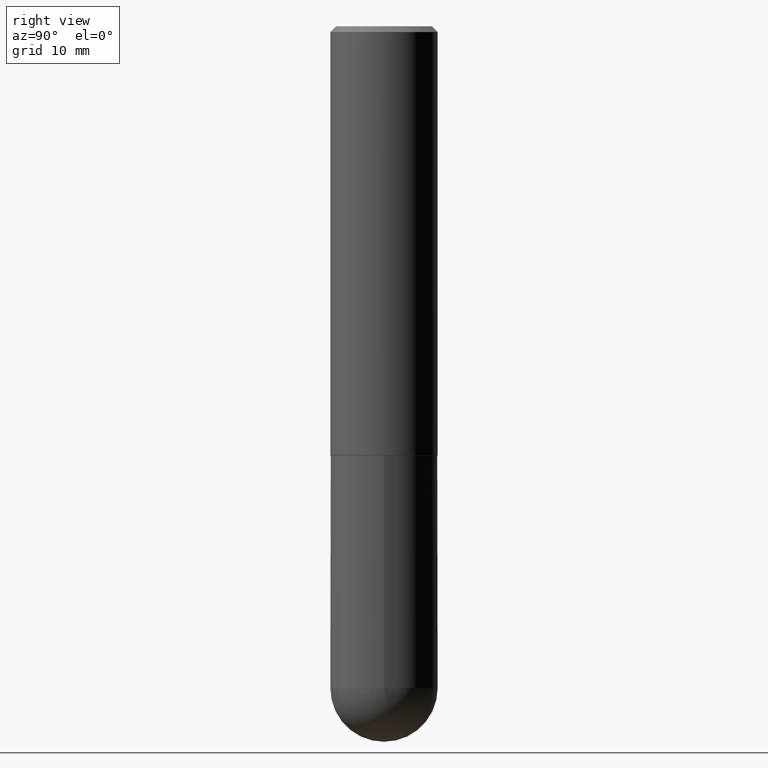
[diagram: clean part render]
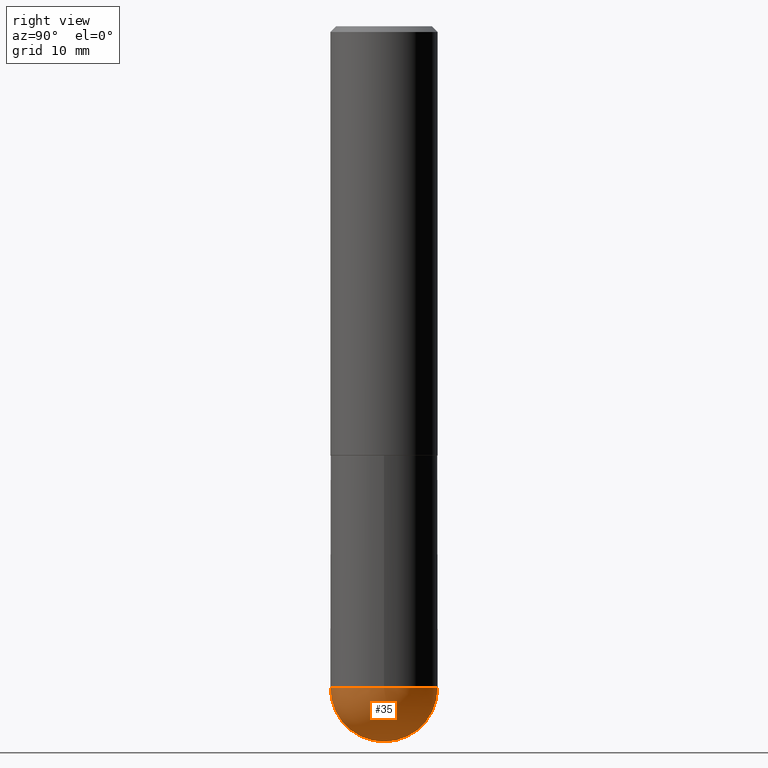
[diagram: same view with one face highlighted and labeled with its STEP entity id]
A machine part, right view. The second image highlights one B-rep face of the part: STEP entity #35.
In plain terms, the highlighted spherical surface has radius 4.7625 mm.
Its self-contained STEP definition (entity closure, byte-faithful):
#7 = CIRCLE ( 'NONE', #353, 0.1875000000000002776 ) ;
#10 = ORIENTED_EDGE ( 'NONE', *, *, #309, .F. ) ;
#33 = CARTESIAN_POINT ( 'NONE',  ( -1.332267629550133812E-15, -0.1875000000000084377, -2.312499999999999556 ) ) ;
#35 = ADVANCED_FACE ( 'NONE', ( #262 ), #312, .T. ) ;
#44 = VERTEX_POINT ( 'NONE', #33 ) ;
#58 = CARTESIAN_POINT ( 'NONE',  ( 5.655146614303128380E-29, -8.074050596074775072E-15, -2.312500000000000000 ) ) ;
#59 = DIRECTION ( 'NONE',  ( 6.982962677686266711E-15, 1.000000000000000000, -2.913971193241876428E-15 ) ) ;
#76 = CIRCLE ( 'NONE', #368, 0.1875000000000002776 ) ;
#89 = DIRECTION ( 'NONE',  ( -1.000000000000000000, 6.982962677686266711E-15, -4.883557194083112340E-29 ) ) ;
#97 = CARTESIAN_POINT ( 'NONE',  ( 5.324026836389243254E-29, -8.548232964214825368E-15, -2.312500000000000000 ) ) ;
#101 = EDGE_CURVE ( 'NONE', #285, #245, #257, .T. ) ;
#114 = AXIS2_PLACEMENT_3D ( 'NONE', #58, #313, #350 ) ;
#162 = DIRECTION ( 'NONE',  ( -1.000000000000000000, 7.105427357601001070E-15, -4.926315508542082329E-29 ) ) ;
#185 = ORIENTED_EDGE ( 'NONE', *, *, #101, .F. ) ;
#199 = DIRECTION ( 'NONE',  ( -7.105427357601001070E-15, -1.000000000000000000, 0.000000000000000000 ) ) ;
#200 = CARTESIAN_POINT ( 'NONE',  ( 5.790569421510013204E-29, -9.191404651505909607E-15, -2.500000000000000000 ) ) ;
#217 = ORIENTED_EDGE ( 'NONE', *, *, #388, .F. ) ;
#229 = CARTESIAN_POINT ( 'NONE',  ( 5.324026836389243254E-29, -8.548232964214825368E-15, -2.312500000000000000 ) ) ;
#231 = AXIS2_PLACEMENT_3D ( 'NONE', #335, #367, #247 ) ;
#245 = VERTEX_POINT ( 'NONE', #274 ) ;
#247 = DIRECTION ( 'NONE',  ( 1.000000000000000000, -6.982962677686263555E-15, 0.000000000000000000 ) ) ;
#257 = CIRCLE ( 'NONE', #231, 0.1874999999999999722 ) ;
#260 = EDGE_CURVE ( 'NONE', #264, #245, #76, .T. ) ;
#262 = FACE_OUTER_BOUND ( 'NONE', #349, .T. ) ;
#264 = VERTEX_POINT ( 'NONE', #200 ) ;
#274 = CARTESIAN_POINT ( 'NONE',  ( 1.309305502066230623E-15, 0.1874999999999918399, -2.312500000000000444 ) ) ;
#285 = VERTEX_POINT ( 'NONE', #410 ) ;
#298 = CIRCLE ( 'NONE', #114, 0.1874999999999999722 ) ;
#305 = ORIENTED_EDGE ( 'NONE', *, *, #260, .T. ) ;
#309 = EDGE_CURVE ( 'NONE', #44, #285, #298, .T. ) ;
#312 = SPHERICAL_SURFACE ( 'NONE', #323, 0.1875000000000002776 ) ;
#313 = DIRECTION ( 'NONE',  ( -2.445468806185136597E-29, 3.491481338843145583E-15, 1.000000000000000000 ) ) ;
#323 = AXIS2_PLACEMENT_3D ( 'NONE', #347, #89, #59 ) ;
#335 = CARTESIAN_POINT ( 'NONE',  ( 5.655146614303128380E-29, -8.074050596074775072E-15, -2.312500000000000000 ) ) ;
#347 = CARTESIAN_POINT ( 'NONE',  ( 5.324026836389243254E-29, -8.548232964214825368E-15, -2.312500000000000000 ) ) ;
#348 = DIRECTION ( 'NONE',  ( 6.982962677686266711E-15, 1.000000000000000000, 0.000000000000000000 ) ) ;
#349 = EDGE_LOOP ( 'NONE', ( #217, #305, #185, #10 ) ) ;
#350 = DIRECTION ( 'NONE',  ( 1.000000000000000000, -6.982962677686263555E-15, 0.000000000000000000 ) ) ;
#353 = AXIS2_PLACEMENT_3D ( 'NONE', #97, #162, #199 ) ;
#367 = DIRECTION ( 'NONE',  ( -2.445468806185136597E-29, 3.491481338843145583E-15, 1.000000000000000000 ) ) ;
#368 = AXIS2_PLACEMENT_3D ( 'NONE', #229, #379, #348 ) ;
#379 = DIRECTION ( 'NONE',  ( 1.000000000000000000, -6.982962677686265922E-15, 4.883557194083112340E-29 ) ) ;
#388 = EDGE_CURVE ( 'NONE', #264, #44, #7, .T. ) ;
#410 = CARTESIAN_POINT ( 'NONE',  ( 0.1874999999999999722, -7.964941804235921238E-15, -2.312500000000000000 ) ) ;